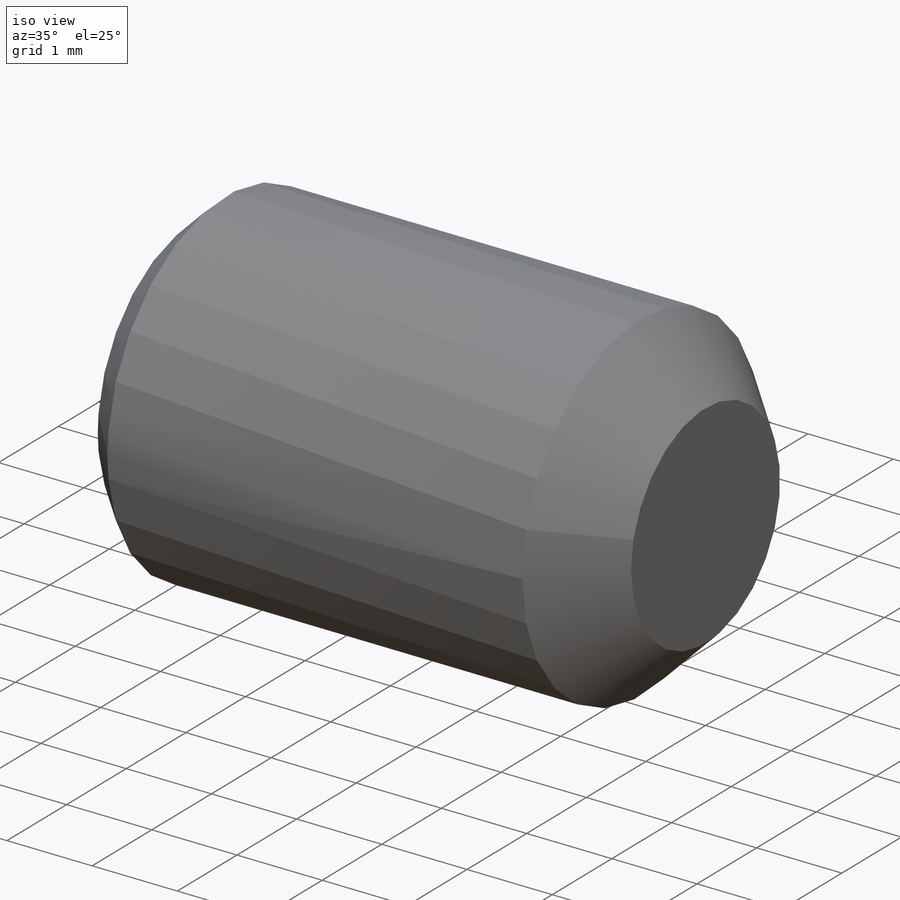
[diagram: iso view]
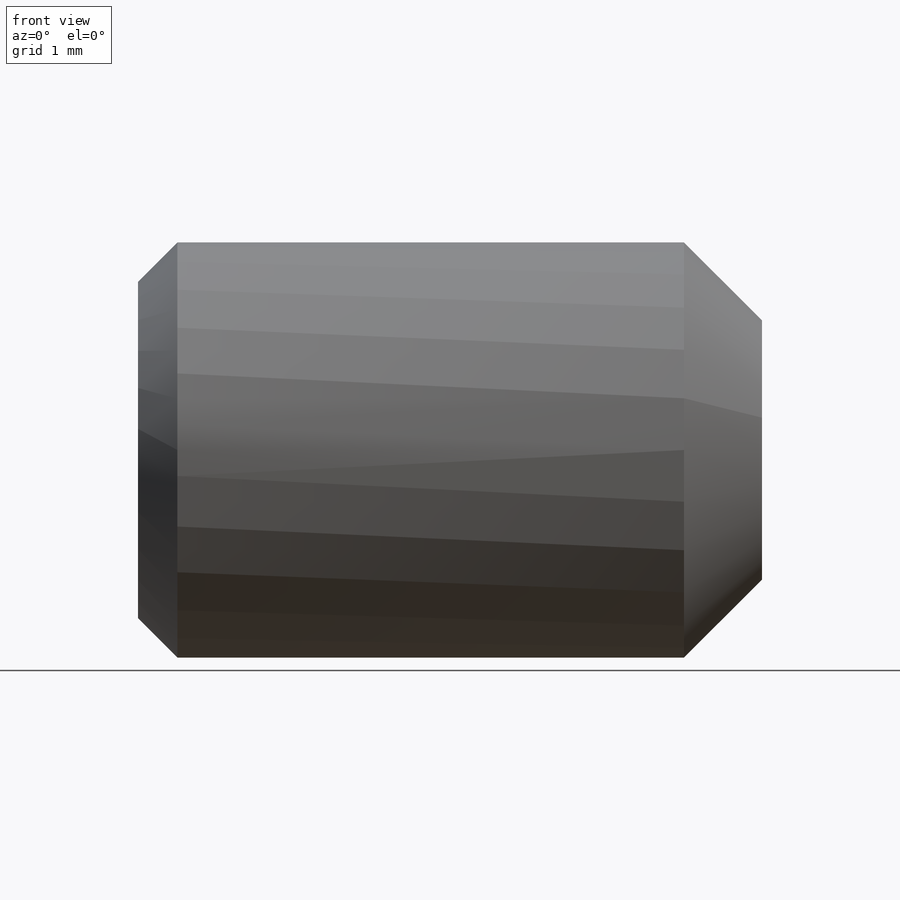
[diagram: front view]
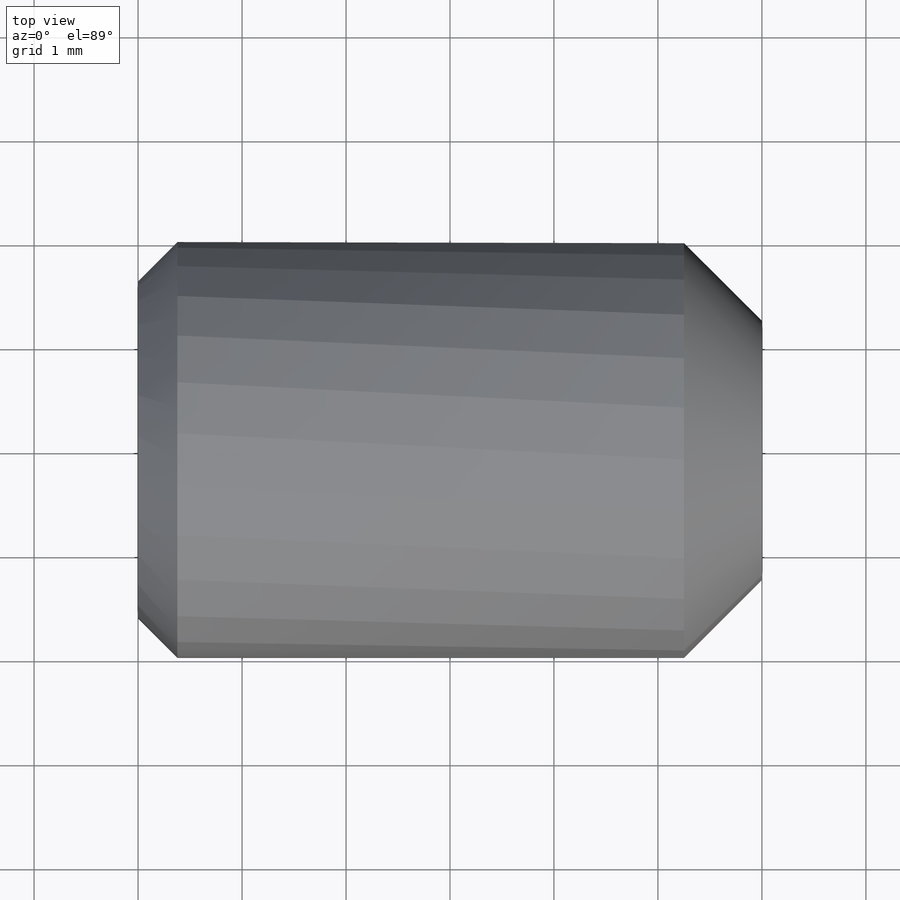
[diagram: top view]
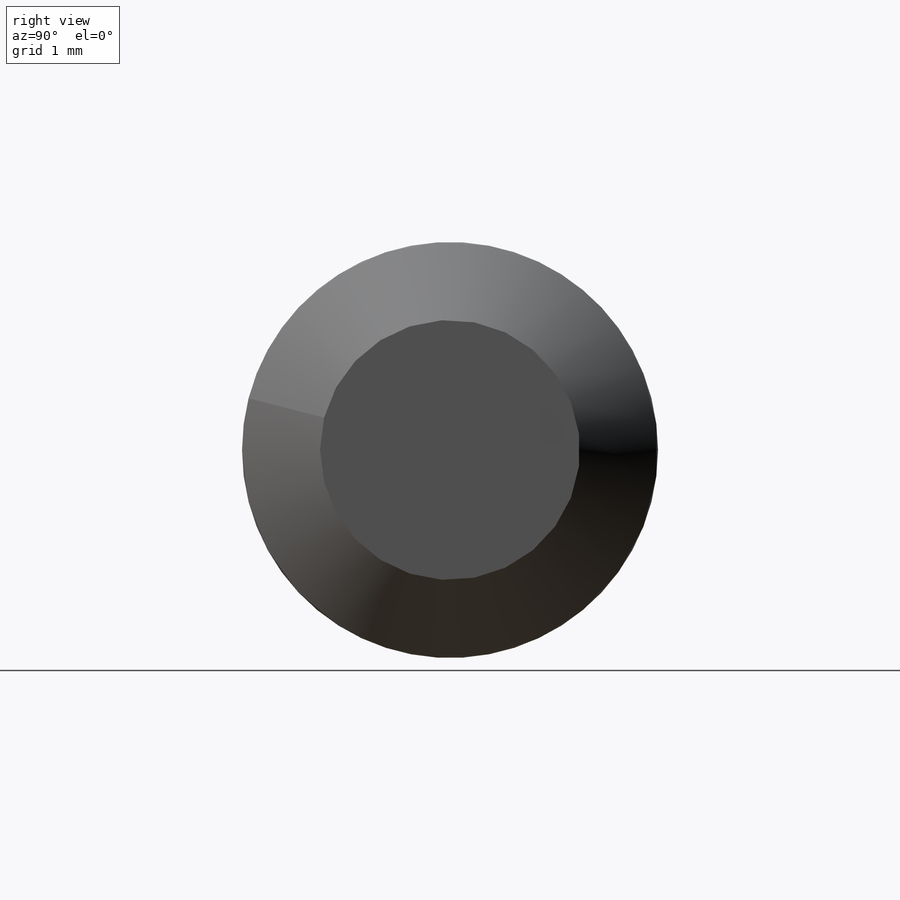
[diagram: right view]
SOLIDWORKS PART (.sldprt)
format: sldprt  version: not decoded by parser v0  size: 405,504 bytes
history: native  units: mm
features: sketch x4, cut_revolve x2, material x1, revolve x1, thread x1, cut_extrude x1, pattern_linear x1 (+12 scaffold rows collapsed)
feature tree (23):
  scaffold x12  (default folders/planes/origin — collapsed)
  material  "材质 <未指定>"
  sketch  "Sketch1"  dims[c1.l=6.0mm c1.dp=2.5mm c1.d=4.0mm c1.df=3.242mm c1.D5=~2.288851mm c2.D5=~36.143919deg c2.D2=45.0deg c2.D6=~0.780725mm c3.D6=~11.077059deg c3.D1=45.0deg]
  revolve  "Base"  [1 undecoded]
  thread  "ThreadCosmetic1"  Diameter=3.242mm  [1 undecoded]
  sketch  "Sketch2"  dims[s=2.0mm]
  cut_extrude  "HexagonSocket"  Depth=1.5mm t=1.5mm
  sketch  "Sketch3"  dims[c1.D1=~0.406558mm c2.D1=120.0deg c3.D1=~0.406558mm c4.D1=60.0deg]
  cut_revolve  "Cut-Revolve1"  Angle=360deg
  sketch  "Sketch4"  dims[D1=4.0mm D2=0.379mm]
  cut_revolve  "Cut-Revolve10"  Angle=360deg
  pattern_linear  "LPattern10"  Count1=12 Count2=1 Spacing1=0.4548mm Spacing2=50mm
decode coverage: 9 of 10 modeling features carry decoded parameters
note: ~ marks probable driven/reference dimensions
note: 2 parameter values undecoded
note: suppression state not decoded; provenance and decode notes live in map.json
